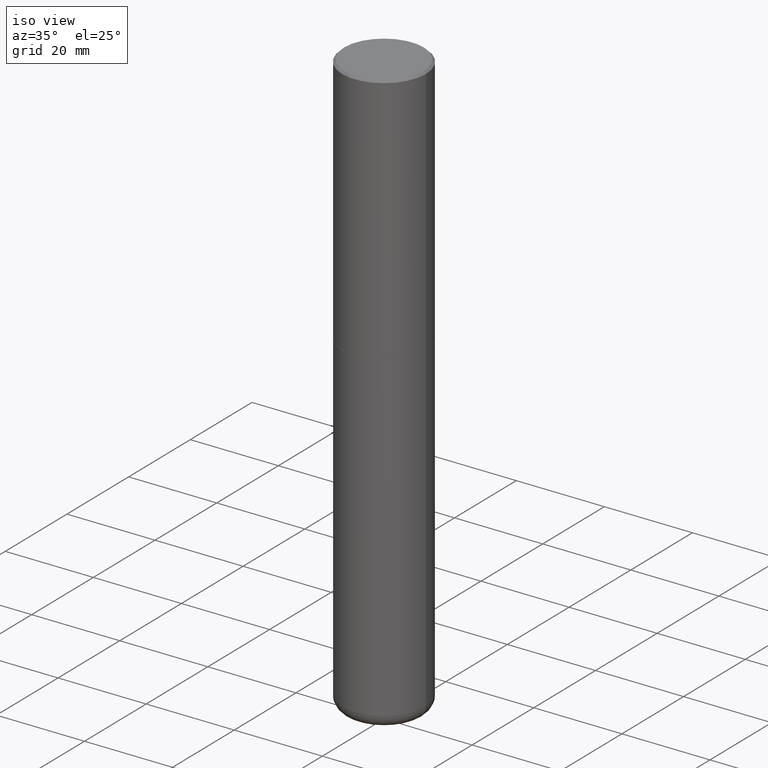
[diagram: clean part render]
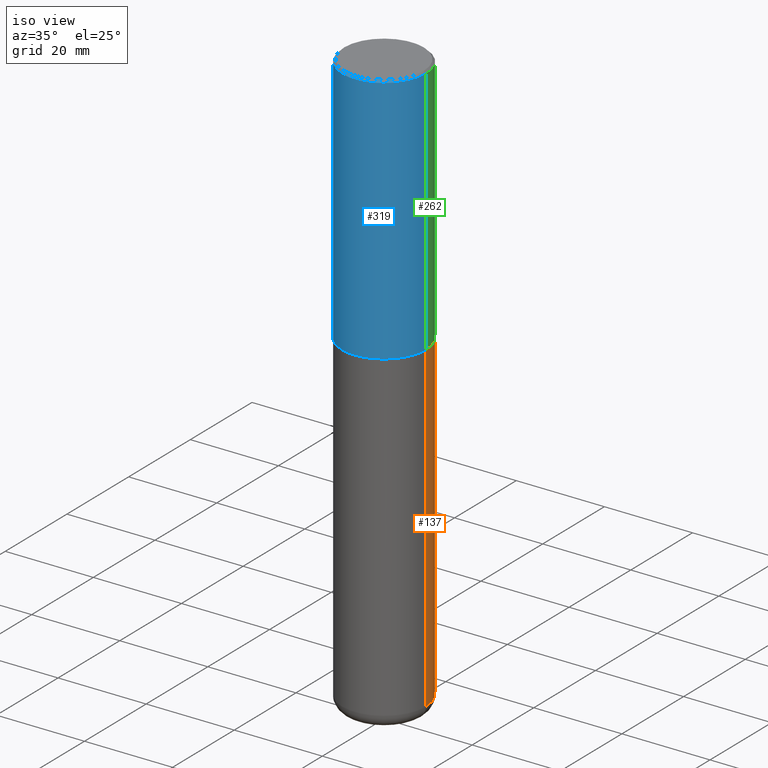
[diagram: same view with three faces highlighted in distinct colors, each labeled with its STEP entity id]
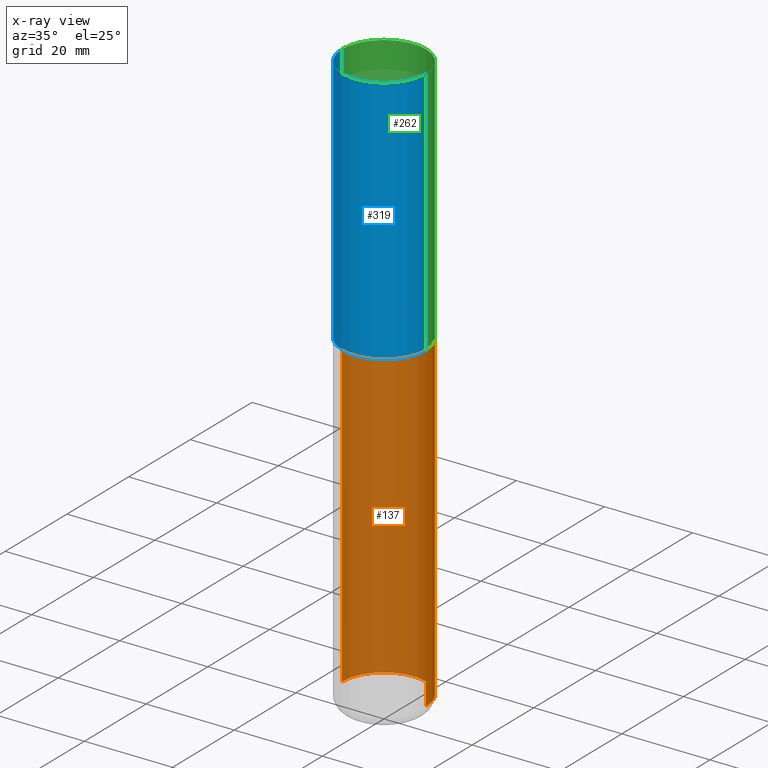
[diagram: x-ray of the same camera — body ghosted, the three highlighted faces saturated]
A machine part, iso view with three faces highlighted in distinct colors.
The next image is the same camera in x-ray (body ghosted, the three faces saturated) — at least one of them is partly hidden behind the body in this view.
Their STEP definitions:

[orange] entity #137 — the highlighted cylindrical surface (partial cylindrical patch) has radius 9.525 mm, axis along (-0, 0, 1).
#31 = CARTESIAN_POINT ( 'NONE',  ( 0.000000000000000000, 0.000000000000000000, 0.000000000000000000 ) ) ;
#38 = ORIENTED_EDGE ( 'NONE', *, *, #228, .F. ) ;
#40 = CYLINDRICAL_SURFACE ( 'NONE', #321, 0.3750000000000000555 ) ;
#47 = EDGE_CURVE ( 'NONE', #330, #359, #394, .T. ) ;
#50 = CARTESIAN_POINT ( 'NONE',  ( 1.254525497572975083E-28, -1.791129926826533659E-14, -5.129999999999999893 ) ) ;
#76 = VECTOR ( 'NONE', #215, 39.37007874015748143 ) ;
#96 = DIRECTION ( 'NONE',  ( -2.445468806185136597E-29, 3.491481338843145583E-15, 1.000000000000000000 ) ) ;
#103 = CARTESIAN_POINT ( 'NONE',  ( -0.3750000000000000555, -1.021903088123083182E-14, -2.250000000000000000 ) ) ;
#109 = EDGE_CURVE ( 'NONE', #359, #379, #120, .T. ) ;
#120 = LINE ( 'NONE', #186, #76 ) ;
#121 = CARTESIAN_POINT ( 'NONE',  ( 0.3750000000000000555, -2.618611004132350016E-15, 1.828566290923476203E-29 ) ) ;
#130 = EDGE_CURVE ( 'NONE', #375, #379, #140, .T. ) ;
#132 = ORIENTED_EDGE ( 'NONE', *, *, #130, .F. ) ;
#136 = EDGE_LOOP ( 'NONE', ( #306, #275, #132, #38 ) ) ;
#137 = ADVANCED_FACE ( 'NONE', ( #353 ), #40, .T. ) ;
#140 = CIRCLE ( 'NONE', #239, 0.3750000000000000555 ) ;
#160 = DIRECTION ( 'NONE',  ( -2.445468806185136597E-29, 3.491481338843145583E-15, 1.000000000000000000 ) ) ;
#166 = DIRECTION ( 'NONE',  ( 1.000000000000000000, -6.982962677686265922E-15, 4.876176775795935793E-29 ) ) ;
#168 = CARTESIAN_POINT ( 'NONE',  ( -0.3749999999999996669, -1.524676400916496405E-14, -5.129999999999999893 ) ) ;
#186 = CARTESIAN_POINT ( 'NONE',  ( -0.3750000000000000555, 2.664535259100376091E-15, -1.844600658845589598E-29 ) ) ;
#199 = CARTESIAN_POINT ( 'NONE',  ( 0.3749999999999996669, -2.052991027239768345E-14, -5.129999999999999893 ) ) ;
#215 = DIRECTION ( 'NONE',  ( -2.445468806185136877E-29, 3.491481338843145188E-15, 1.000000000000000000 ) ) ;
#221 = DIRECTION ( 'NONE',  ( 1.000000000000000000, -6.982962677686264344E-15, 0.000000000000000000 ) ) ;
#228 = EDGE_CURVE ( 'NONE', #330, #375, #413, .T. ) ;
#239 = AXIS2_PLACEMENT_3D ( 'NONE', #388, #96, #221 ) ;
#267 = AXIS2_PLACEMENT_3D ( 'NONE', #50, #344, #308 ) ;
#272 = CARTESIAN_POINT ( 'NONE',  ( 0.3750000000000000555, -1.047444401652942689E-14, -2.250000000000000000 ) ) ;
#275 = ORIENTED_EDGE ( 'NONE', *, *, #109, .T. ) ;
#306 = ORIENTED_EDGE ( 'NONE', *, *, #47, .T. ) ;
#308 = DIRECTION ( 'NONE',  ( 1.000000000000000000, -6.982962677686261189E-15, 0.000000000000000000 ) ) ;
#321 = AXIS2_PLACEMENT_3D ( 'NONE', #31, #160, #166 ) ;
#330 = VERTEX_POINT ( 'NONE', #199 ) ;
#342 = DIRECTION ( 'NONE',  ( -2.445468806185136877E-29, 3.491481338843145188E-15, 1.000000000000000000 ) ) ;
#344 = DIRECTION ( 'NONE',  ( -2.445468806185136597E-29, 3.491481338843145583E-15, 1.000000000000000000 ) ) ;
#353 = FACE_OUTER_BOUND ( 'NONE', #136, .T. ) ;
#359 = VERTEX_POINT ( 'NONE', #168 ) ;
#365 = VECTOR ( 'NONE', #342, 39.37007874015748143 ) ;
#375 = VERTEX_POINT ( 'NONE', #272 ) ;
#379 = VERTEX_POINT ( 'NONE', #103 ) ;
#388 = CARTESIAN_POINT ( 'NONE',  ( 5.502304813916557343E-29, -7.855833012397078448E-15, -2.250000000000000000 ) ) ;
#394 = CIRCLE ( 'NONE', #267, 0.3750000000000000555 ) ;
#413 = LINE ( 'NONE', #121, #365 ) ;

[blue] entity #319 — the highlighted cylindrical surface (partial cylindrical patch) has radius 9.525 mm, axis along (-0, 0, 1).
#5 = CARTESIAN_POINT ( 'NONE',  ( -0.3750000000000001665, 2.664535259100376880E-15, -1.844600658845590439E-29 ) ) ;
#21 = VERTEX_POINT ( 'NONE', #46 ) ;
#22 = CARTESIAN_POINT ( 'NONE',  ( 5.499859345110371740E-29, -7.852341531058233864E-15, -2.249000000000000110 ) ) ;
#30 = DIRECTION ( 'NONE',  ( 1.000000000000000000, -6.982962677686266711E-15, 4.876176775795935793E-29 ) ) ;
#46 = CARTESIAN_POINT ( 'NONE',  ( 0.3750000000000000555, -2.642516375941188029E-15, -0.02000000000000008715 ) ) ;
#63 = AXIS2_PLACEMENT_3D ( 'NONE', #22, #146, #261 ) ;
#70 = CARTESIAN_POINT ( 'NONE',  ( 0.000000000000000000, 0.000000000000000000, 0.000000000000000000 ) ) ;
#73 = ORIENTED_EDGE ( 'NONE', *, *, #93, .F. ) ;
#78 = ORIENTED_EDGE ( 'NONE', *, *, #366, .F. ) ;
#86 = CARTESIAN_POINT ( 'NONE',  ( 0.3750000000000001665, -2.618611004132351200E-15, 1.828566290923476763E-29 ) ) ;
#87 = ORIENTED_EDGE ( 'NONE', *, *, #263, .T. ) ;
#93 = EDGE_CURVE ( 'NONE', #169, #21, #402, .T. ) ;
#146 = DIRECTION ( 'NONE',  ( -2.445468806185136597E-29, 3.491481338843145583E-15, 1.000000000000000000 ) ) ;
#147 = AXIS2_PLACEMENT_3D ( 'NONE', #70, #226, #30 ) ;
#156 = DIRECTION ( 'NONE',  ( 1.000000000000000000, -6.982962677686265922E-15, 0.000000000000000000 ) ) ;
#169 = VERTEX_POINT ( 'NONE', #284 ) ;
#177 = ORIENTED_EDGE ( 'NONE', *, *, #288, .T. ) ;
#194 = LINE ( 'NONE', #5, #260 ) ;
#213 = DIRECTION ( 'NONE',  ( -2.445468806185136877E-29, 3.491481338843145188E-15, 1.000000000000000000 ) ) ;
#216 = AXIS2_PLACEMENT_3D ( 'NONE', #257, #286, #156 ) ;
#226 = DIRECTION ( 'NONE',  ( -2.445468806185136597E-29, 3.491481338843145583E-15, 1.000000000000000000 ) ) ;
#250 = VECTOR ( 'NONE', #213, 39.37007874015748143 ) ;
#257 = CARTESIAN_POINT ( 'NONE',  ( 4.890937612370294178E-31, -6.982962677686321191E-17, -0.02000000000000008715 ) ) ;
#260 = VECTOR ( 'NONE', #266, 39.37007874015748143 ) ;
#261 = DIRECTION ( 'NONE',  ( 1.000000000000000000, -6.982962677686267499E-15, 0.000000000000000000 ) ) ;
#263 = EDGE_CURVE ( 'NONE', #333, #21, #381, .T. ) ;
#264 = CYLINDRICAL_SURFACE ( 'NONE', #147, 0.3750000000000001665 ) ;
#266 = DIRECTION ( 'NONE',  ( -2.445468806185136877E-29, 3.491481338843145188E-15, 1.000000000000000000 ) ) ;
#284 = CARTESIAN_POINT ( 'NONE',  ( -0.3750000000000000555, 2.548781377355486718E-15, -0.02000000000000008715 ) ) ;
#286 = DIRECTION ( 'NONE',  ( -2.445468806185136597E-29, 3.491481338843145583E-15, 1.000000000000000000 ) ) ;
#288 = EDGE_CURVE ( 'NONE', #361, #333, #409, .T. ) ;
#290 = FACE_OUTER_BOUND ( 'NONE', #300, .T. ) ;
#298 = CARTESIAN_POINT ( 'NONE',  ( -0.3750000000000002776, -1.296550319817168545E-15, -2.249000000000000110 ) ) ;
#300 = EDGE_LOOP ( 'NONE', ( #78, #177, #87, #73 ) ) ;
#319 = ADVANCED_FACE ( 'NONE', ( #290 ), #264, .T. ) ;
#333 = VERTEX_POINT ( 'NONE', #360 ) ;
#360 = CARTESIAN_POINT ( 'NONE',  ( 0.3750000000000002776, -1.047095253519058704E-14, -2.249000000000000110 ) ) ;
#361 = VERTEX_POINT ( 'NONE', #298 ) ;
#366 = EDGE_CURVE ( 'NONE', #361, #169, #194, .T. ) ;
#381 = LINE ( 'NONE', #86, #250 ) ;
#402 = CIRCLE ( 'NONE', #216, 0.3750000000000000555 ) ;
#409 = CIRCLE ( 'NONE', #63, 0.3750000000000002776 ) ;

[green] entity #262 — the highlighted cylindrical surface (partial cylindrical patch) has radius 9.525 mm, axis along (-0, 0, 1).
#3 = EDGE_CURVE ( 'NONE', #21, #169, #339, .T. ) ;
#4 = ORIENTED_EDGE ( 'NONE', *, *, #3, .F. ) ;
#5 = CARTESIAN_POINT ( 'NONE',  ( -0.3750000000000001665, 2.664535259100376880E-15, -1.844600658845590439E-29 ) ) ;
#21 = VERTEX_POINT ( 'NONE', #46 ) ;
#46 = CARTESIAN_POINT ( 'NONE',  ( 0.3750000000000000555, -2.642516375941188029E-15, -0.02000000000000008715 ) ) ;
#75 = ORIENTED_EDGE ( 'NONE', *, *, #164, .T. ) ;
#85 = DIRECTION ( 'NONE',  ( 1.000000000000000000, -6.982962677686265922E-15, 0.000000000000000000 ) ) ;
#86 = CARTESIAN_POINT ( 'NONE',  ( 0.3750000000000001665, -2.618611004132351200E-15, 1.828566290923476763E-29 ) ) ;
#110 = DIRECTION ( 'NONE',  ( -2.445468806185136597E-29, 3.491481338843145583E-15, 1.000000000000000000 ) ) ;
#115 = DIRECTION ( 'NONE',  ( 1.000000000000000000, -6.982962677686266711E-15, 4.876176775795935793E-29 ) ) ;
#144 = CYLINDRICAL_SURFACE ( 'NONE', #283, 0.3750000000000001665 ) ;
#153 = DIRECTION ( 'NONE',  ( 1.000000000000000000, -6.982962677686267499E-15, 0.000000000000000000 ) ) ;
#164 = EDGE_CURVE ( 'NONE', #333, #361, #224, .T. ) ;
#169 = VERTEX_POINT ( 'NONE', #284 ) ;
#173 = AXIS2_PLACEMENT_3D ( 'NONE', #285, #314, #153 ) ;
#194 = LINE ( 'NONE', #5, #260 ) ;
#209 = CARTESIAN_POINT ( 'NONE',  ( 4.890937612370294178E-31, -6.982962677686321191E-17, -0.02000000000000008715 ) ) ;
#213 = DIRECTION ( 'NONE',  ( -2.445468806185136877E-29, 3.491481338843145188E-15, 1.000000000000000000 ) ) ;
#224 = CIRCLE ( 'NONE', #173, 0.3750000000000002776 ) ;
#249 = AXIS2_PLACEMENT_3D ( 'NONE', #209, #110, #85 ) ;
#250 = VECTOR ( 'NONE', #213, 39.37007874015748143 ) ;
#251 = DIRECTION ( 'NONE',  ( -2.445468806185136597E-29, 3.491481338843145583E-15, 1.000000000000000000 ) ) ;
#260 = VECTOR ( 'NONE', #266, 39.37007874015748143 ) ;
#262 = ADVANCED_FACE ( 'NONE', ( #345 ), #144, .T. ) ;
#263 = EDGE_CURVE ( 'NONE', #333, #21, #381, .T. ) ;
#266 = DIRECTION ( 'NONE',  ( -2.445468806185136877E-29, 3.491481338843145188E-15, 1.000000000000000000 ) ) ;
#273 = ORIENTED_EDGE ( 'NONE', *, *, #263, .F. ) ;
#281 = CARTESIAN_POINT ( 'NONE',  ( 0.000000000000000000, 0.000000000000000000, 0.000000000000000000 ) ) ;
#283 = AXIS2_PLACEMENT_3D ( 'NONE', #281, #251, #115 ) ;
#284 = CARTESIAN_POINT ( 'NONE',  ( -0.3750000000000000555, 2.548781377355486718E-15, -0.02000000000000008715 ) ) ;
#285 = CARTESIAN_POINT ( 'NONE',  ( 5.499859345110371740E-29, -7.852341531058233864E-15, -2.249000000000000110 ) ) ;
#298 = CARTESIAN_POINT ( 'NONE',  ( -0.3750000000000002776, -1.296550319817168545E-15, -2.249000000000000110 ) ) ;
#314 = DIRECTION ( 'NONE',  ( -2.445468806185136597E-29, 3.491481338843145583E-15, 1.000000000000000000 ) ) ;
#317 = EDGE_LOOP ( 'NONE', ( #75, #335, #4, #273 ) ) ;
#333 = VERTEX_POINT ( 'NONE', #360 ) ;
#335 = ORIENTED_EDGE ( 'NONE', *, *, #366, .T. ) ;
#339 = CIRCLE ( 'NONE', #249, 0.3750000000000000555 ) ;
#345 = FACE_OUTER_BOUND ( 'NONE', #317, .T. ) ;
#360 = CARTESIAN_POINT ( 'NONE',  ( 0.3750000000000002776, -1.047095253519058704E-14, -2.249000000000000110 ) ) ;
#361 = VERTEX_POINT ( 'NONE', #298 ) ;
#366 = EDGE_CURVE ( 'NONE', #361, #169, #194, .T. ) ;
#381 = LINE ( 'NONE', #86, #250 ) ;